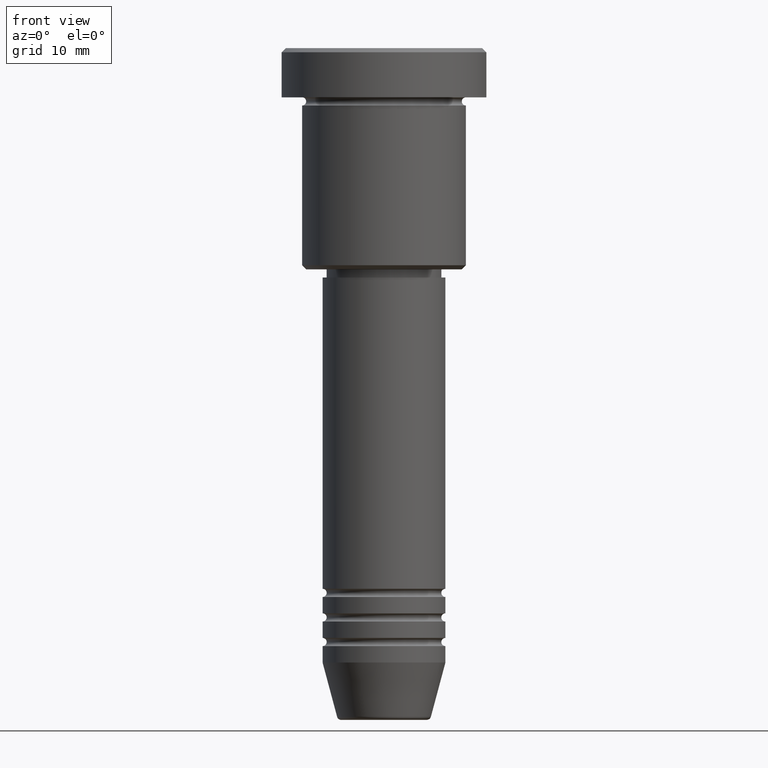
[diagram: clean part render]
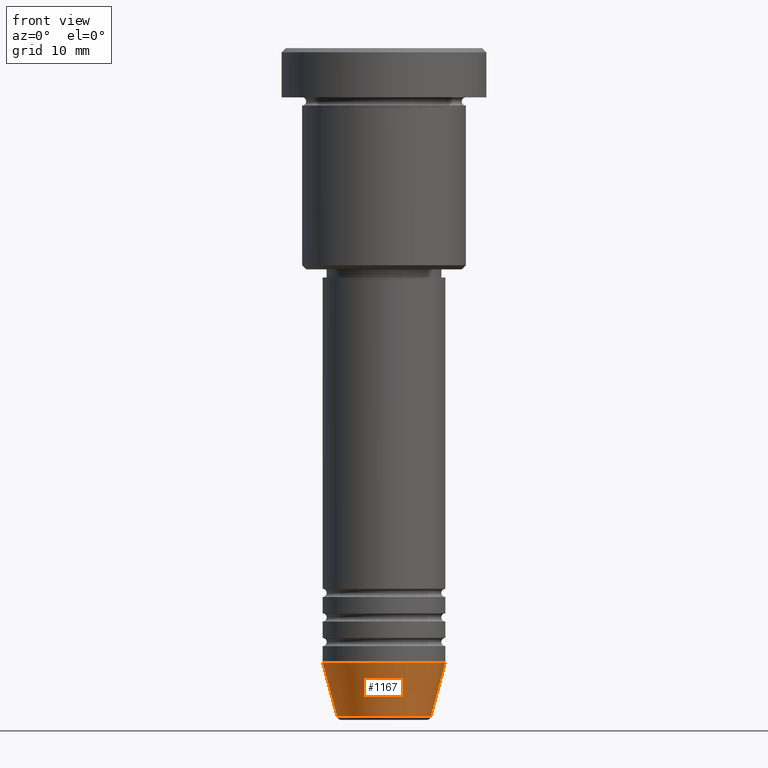
[diagram: same view with one face highlighted and labeled with its STEP entity id]
A machine part, front view. The second image highlights one B-rep face of the part: STEP entity #1167.
In plain terms, the highlighted conical surface has half-angle 15 deg.
Its self-contained STEP definition (entity closure, byte-faithful):
#24 = CARTESIAN_POINT ( 'NONE',  ( -7.500000000000000000, 9.184850993605147944E-16, -75.00000000000001421 ) ) ;
#30 = CARTESIAN_POINT ( 'NONE',  ( 7.500000000000000000, 0.000000000000000000, -75.00000000000001421 ) ) ;
#39 = EDGE_CURVE ( 'NONE', #728, #141, #355, .T. ) ;
#70 = EDGE_CURVE ( 'NONE', #141, #609, #784, .T. ) ;
#80 = DIRECTION ( 'NONE',  ( -0.000000000000000000, -0.000000000000000000, 1.000000000000000000 ) ) ;
#109 = AXIS2_PLACEMENT_3D ( 'NONE', #254, #80, #811 ) ;
#124 = EDGE_CURVE ( 'NONE', #550, #609, #534, .T. ) ;
#141 = VERTEX_POINT ( 'NONE', #1007 ) ;
#209 = CONICAL_SURFACE ( 'NONE', #891, 7.500000000000000000, 0.2617993877991500740 ) ;
#215 = AXIS2_PLACEMENT_3D ( 'NONE', #420, #414, #222 ) ;
#222 = DIRECTION ( 'NONE',  ( 1.000000000000000000, 0.000000000000000000, 0.000000000000000000 ) ) ;
#228 = CARTESIAN_POINT ( 'NONE',  ( 7.500000000000000000, 0.000000000000000000, -75.00000000000001421 ) ) ;
#254 = CARTESIAN_POINT ( 'NONE',  ( 0.000000000000000000, 0.000000000000000000, -75.00000000000001421 ) ) ;
#355 = CIRCLE ( 'NONE', #215, 5.723655072137191269 ) ;
#366 = ORIENTED_EDGE ( 'NONE', *, *, #70, .T. ) ;
#414 = DIRECTION ( 'NONE',  ( -0.000000000000000000, -0.000000000000000000, 1.000000000000000000 ) ) ;
#420 = CARTESIAN_POINT ( 'NONE',  ( 0.000000000000000000, 0.000000000000000000, -81.62940952255128479 ) ) ;
#425 = EDGE_CURVE ( 'NONE', #728, #550, #497, .T. ) ;
#497 = LINE ( 'NONE', #864, #1078 ) ;
#505 = FACE_OUTER_BOUND ( 'NONE', #1145, .T. ) ;
#513 = CARTESIAN_POINT ( 'NONE',  ( 0.000000000000000000, 0.000000000000000000, -75.00000000000001421 ) ) ;
#534 = CIRCLE ( 'NONE', #109, 7.500000000000000000 ) ;
#550 = VERTEX_POINT ( 'NONE', #24 ) ;
#561 = CARTESIAN_POINT ( 'NONE',  ( -5.723655072137190380, 8.097153428560735915E-16, -81.62940952255128479 ) ) ;
#609 = VERTEX_POINT ( 'NONE', #30 ) ;
#679 = ORIENTED_EDGE ( 'NONE', *, *, #124, .F. ) ;
#728 = VERTEX_POINT ( 'NONE', #561 ) ;
#775 = ORIENTED_EDGE ( 'NONE', *, *, #39, .T. ) ;
#784 = LINE ( 'NONE', #228, #1051 ) ;
#811 = DIRECTION ( 'NONE',  ( 1.000000000000000000, 0.000000000000000000, 0.000000000000000000 ) ) ;
#864 = CARTESIAN_POINT ( 'NONE',  ( -7.500000000000000000, 9.184850993605147944E-16, -75.00000000000001421 ) ) ;
#873 = DIRECTION ( 'NONE',  ( -0.000000000000000000, -0.000000000000000000, 1.000000000000000000 ) ) ;
#883 = DIRECTION ( 'NONE',  ( 1.000000000000000000, 0.000000000000000000, 0.000000000000000000 ) ) ;
#891 = AXIS2_PLACEMENT_3D ( 'NONE', #513, #873, #883 ) ;
#961 = DIRECTION ( 'NONE',  ( -0.2588190451025213501, 3.169619151431772337E-17, 0.9659258262890680902 ) ) ;
#1007 = CARTESIAN_POINT ( 'NONE',  ( 5.723655072137191269, 0.000000000000000000, -81.62940952255128479 ) ) ;
#1015 = DIRECTION ( 'NONE',  ( 0.2588190451025213501, 0.000000000000000000, 0.9659258262890680902 ) ) ;
#1051 = VECTOR ( 'NONE', #1015, 1000.000000000000000 ) ;
#1078 = VECTOR ( 'NONE', #961, 1000.000000000000000 ) ;
#1145 = EDGE_LOOP ( 'NONE', ( #1151, #775, #366, #679 ) ) ;
#1151 = ORIENTED_EDGE ( 'NONE', *, *, #425, .F. ) ;
#1167 = ADVANCED_FACE ( 'NONE', ( #505 ), #209, .T. ) ;